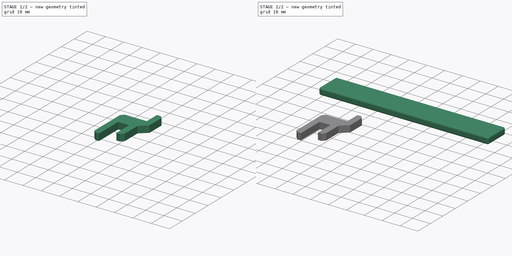
[diagram: build sequence overview — one tinted view per stage of 2, left to right]
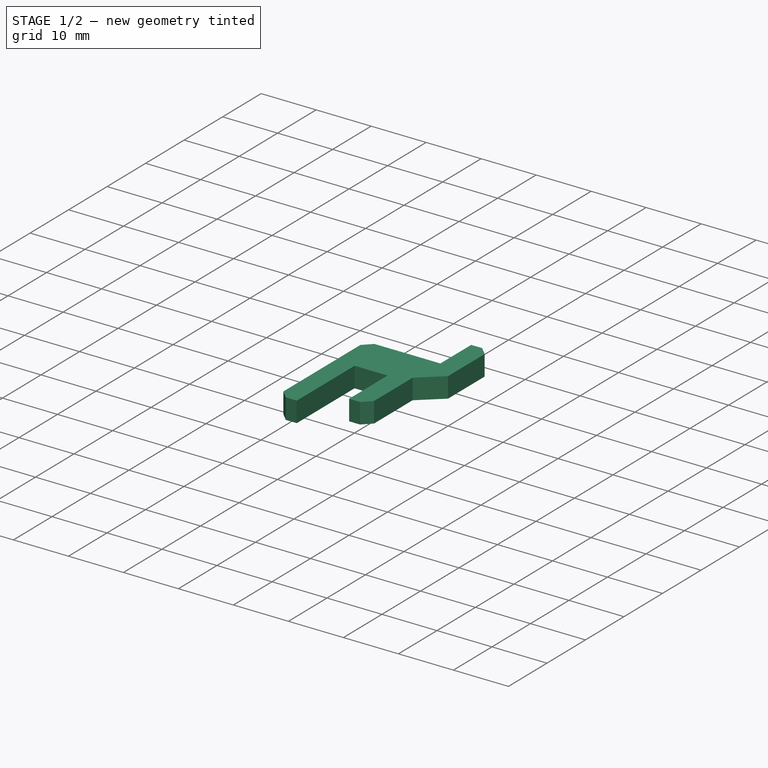
[diagram: stage 1 of 2 — iso view after this stage's code; geometry added in this stage tinted green]
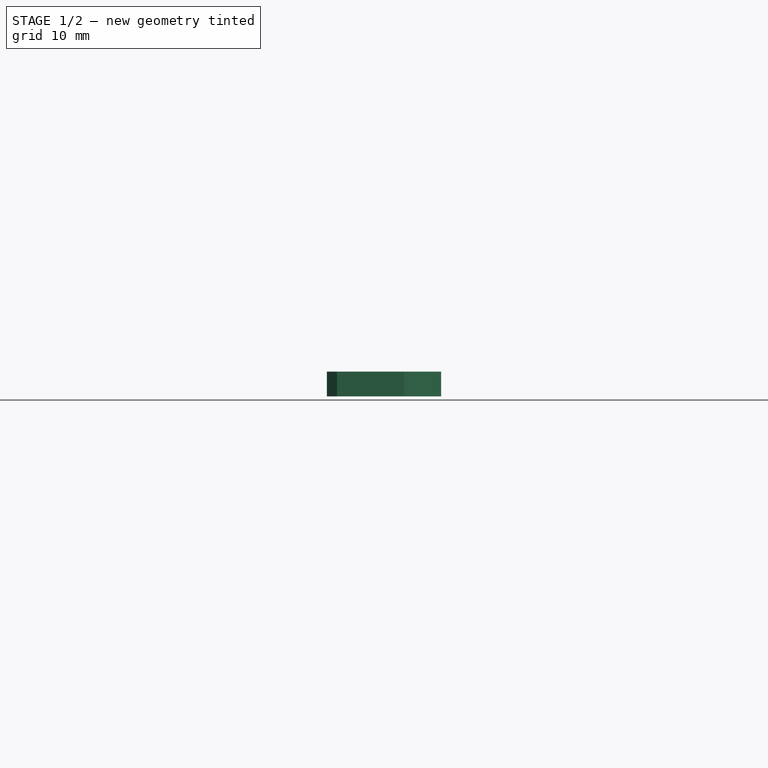
[diagram: stage 1 of 2 — front view after this stage's code; geometry added in this stage tinted green]
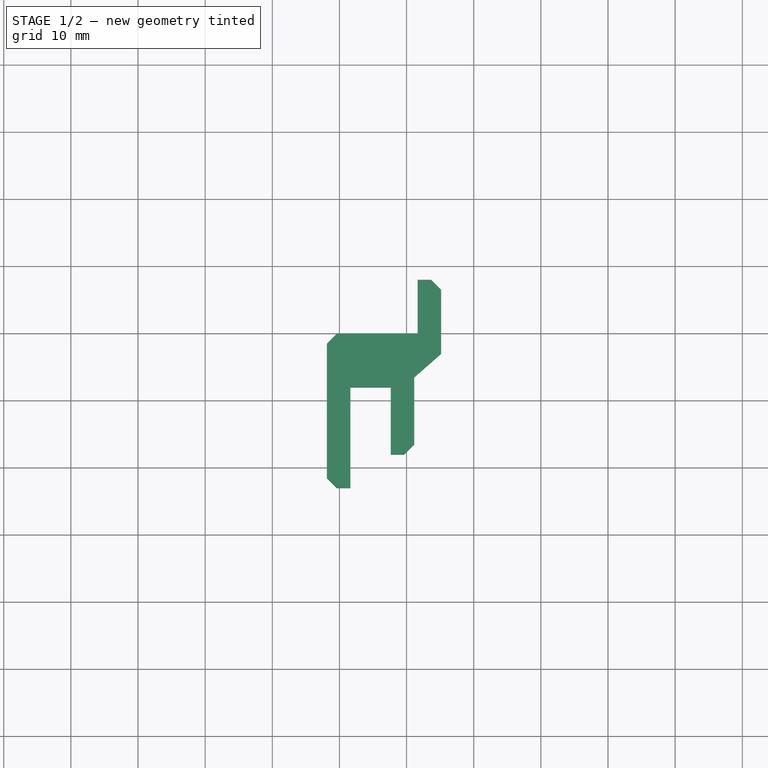
[diagram: stage 1 of 2 — top view after this stage's code; geometry added in this stage tinted green]
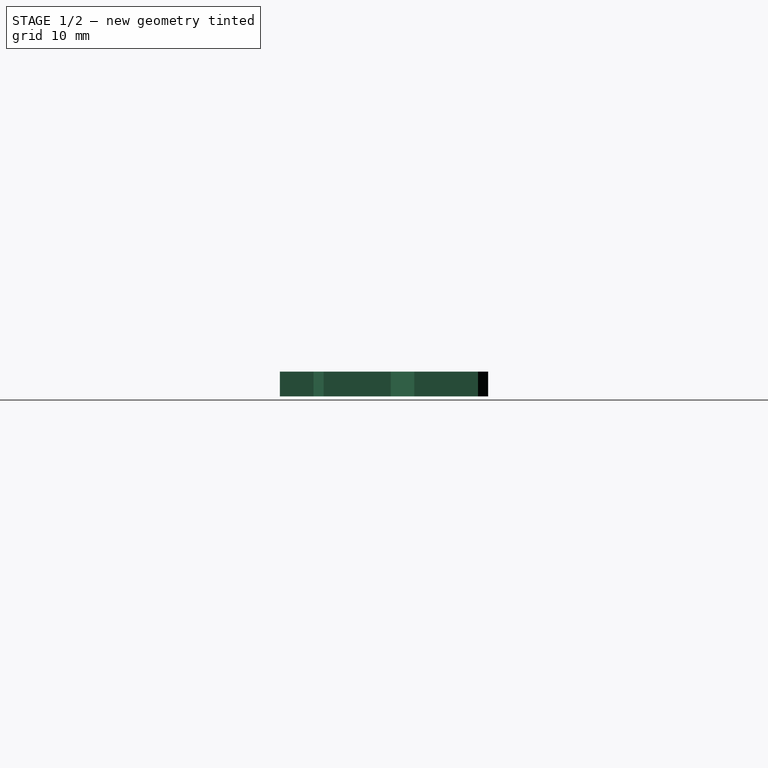
[diagram: stage 1 of 2 — right view after this stage's code; geometry added in this stage tinted green]
FCSTD DOCUMENT  (FreeCAD 0.16R6706 (Git))
Label: bloqueo_puerta
License: All rights reserved
LicenseURL: http://en.wikipedia.org/wiki/All_rights_reserved
objects: Part::Box×1, Part::Fillet×1, Sketcher::SketchObject×1, PartDesign::Pad×1, Part::FeaturePython×1
note: 6 computed .brp shape members not serialized (recipe doc carries the construction recipe); baked Part::Feature solids carry a one-line shape summary decoded from their .brp

FEATURE [Sketcher::SketchObject] Sketch
  Placement = pos=(26,0,4) rot=(0,0,1;0rad)
  sketch-geometry (16):
    g0: LineSegment StartX=23.6358 StartY=-0.032809 StartZ=0 EndX=35.6358 EndY=-0.032809 EndZ=0
    g1: LineSegment StartX=35.6358 StartY=-0.032809 StartZ=0 EndX=35.6358 EndY=7.96719 EndZ=0
    g2: LineSegment StartX=35.6358 StartY=7.96719 StartZ=0 EndX=37.6358 EndY=7.96719 EndZ=0
    g3: LineSegment StartX=39.1358 StartY=6.46719 StartZ=0 EndX=39.1358 EndY=-3.03281 EndZ=0
    g4: LineSegment StartX=39.1358 StartY=-3.03281 StartZ=0 EndX=35.1358 EndY=-6.53281 EndZ=0
    g5: LineSegment StartX=35.1358 StartY=-6.53281 StartZ=0 EndX=35.1358 EndY=-16.5328 EndZ=0
    g6: LineSegment StartX=33.6358 StartY=-18.0328 StartZ=0 EndX=31.6358 EndY=-18.0328 EndZ=0
    g7: LineSegment StartX=31.6358 StartY=-18.0328 StartZ=0 EndX=31.6358 EndY=-8.03281 EndZ=0
    g8: LineSegment StartX=31.6358 StartY=-8.03281 StartZ=0 EndX=25.6358 EndY=-8.03281 EndZ=0
    g9: LineSegment StartX=25.6358 StartY=-8.03281 StartZ=0 EndX=25.6358 EndY=-23.0328 EndZ=0
    g10: LineSegment StartX=25.6358 StartY=-23.0328 StartZ=0 EndX=23.6358 EndY=-23.0328 EndZ=0
    g11: LineSegment StartX=23.6358 StartY=-23.0328 StartZ=0 EndX=22.1358 EndY=-21.5328 EndZ=0
    g12: LineSegment StartX=22.1358 StartY=-21.5328 StartZ=0 EndX=22.1358 EndY=-1.53281 EndZ=0
    g13: LineSegment StartX=22.1358 StartY=-1.53281 StartZ=0 EndX=23.6358 EndY=-0.032809 EndZ=0
    g14: LineSegment StartX=37.6358 StartY=7.96719 StartZ=0 EndX=39.1358 EndY=6.46719 EndZ=0
    g15: LineSegment StartX=35.1358 StartY=-16.5328 StartZ=0 EndX=33.6358 EndY=-18.0328 EndZ=0
  constraints (47):
    c: Coincident(g1,g0)
    c: Coincident(g2,g1)
    c: Coincident(g4,g3)
    c: Coincident(g5,g4)
    c: Coincident(g7,g6)
    c: Coincident(g8,g7)
    c: Coincident(g9,g8)
    c: Coincident(g10,g9)
    c: Coincident(g11,g10)
    c: Coincident(g12,g11)
    c: Coincident(g13,g12)
    c: Coincident(g14,g2)
    c: Coincident(g14,g3)
    c: Coincident(g15,g5)
    c: Coincident(g15,g6)
    c: DistanceX(g0,g0) = 12
    c: DistanceY(g1,g1) = 8
    c: DistanceX(g2,g2) = 2
    c: DistanceY(g3,g3) = 9.5
    c: DistanceY(g5,g5) = 10
    c: DistanceX(g6,g6) = 2
    c: DistanceY(g7,g7) = 10
    c: DistanceX(g8,g8) = 6
    c: DistanceY(g9,g9) = 15
    c: DistanceX(g10,g10) = 2
    c: DistanceY(g12,g12) = 20
    c: DistanceX(g13,g13) = 1.5
    c: DistanceY(g13,g13) = 1.5
    c: DistanceY(g11,g11) = 1.5
    c: DistanceX(g11,g11) = 1.5
    c: DistanceX(g15,g15) = 1.5
    c: DistanceY(g15,g15) = 1.5
    c: DistanceX(g4,g4) = 4
    c: DistanceY(g4,g4) = 3.5
    c: DistanceX(g14,g14) = 1.5
    c: DistanceY(g14,g14) = 1.5
    c: Vertical(g12)
    c: Vertical(g9)
    c: Vertical(g7)
    c: Vertical(g5)
    c: Vertical(g3)
    c: Vertical(g1)
    c: Coincident(g0,g13)
    c: Horizontal(g0)
    c: Horizontal(g2)
    c: Horizontal(g6)
    c: Horizontal(g10)
FEATURE [PartDesign::Pad] Pad  label="soporte_1"
  Length = 3.7
  Length2 = 100
  Placement = pos=(26,0,4) rot=(0,0,1;0rad)
  Sketch = -> Sketch
  Type = 0
FEATURE [Part::FeaturePython] Clone001  label="soporte_2"  # Draft clone (typed FeaturePython)
  Objects = -> [Pad]
  Placement = pos=(-4,0,0) rot=(0,0,1;0rad)
  Scale = (1,1,1)
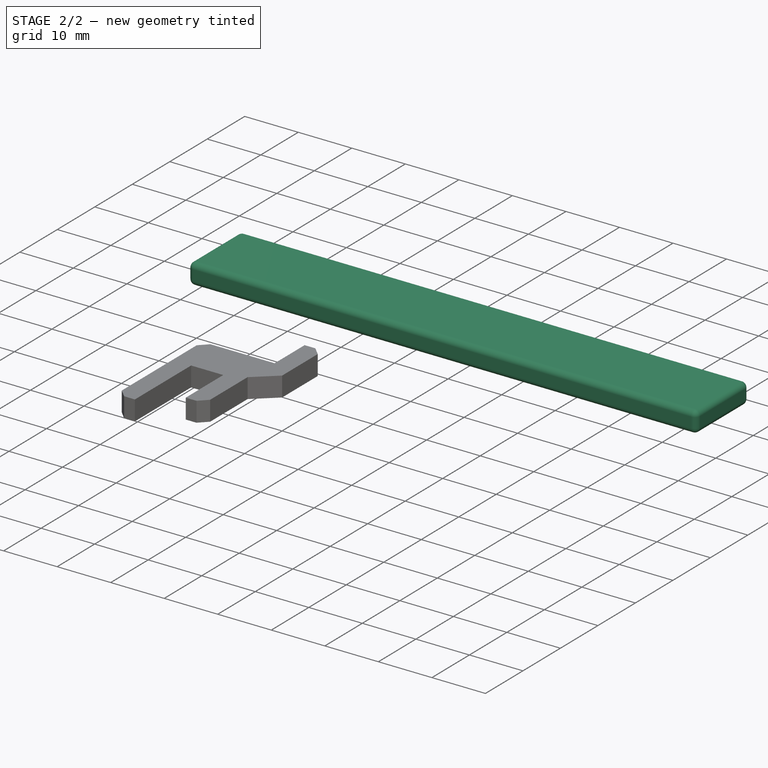
[diagram: stage 2 of 2 — iso view after this stage's code; geometry added in this stage tinted green]
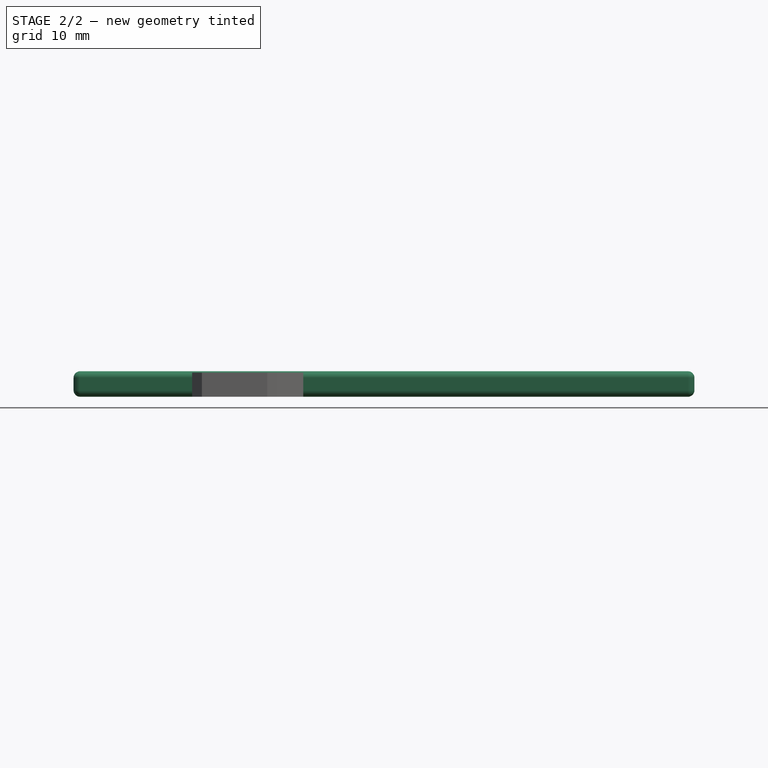
[diagram: stage 2 of 2 — front view after this stage's code; geometry added in this stage tinted green]
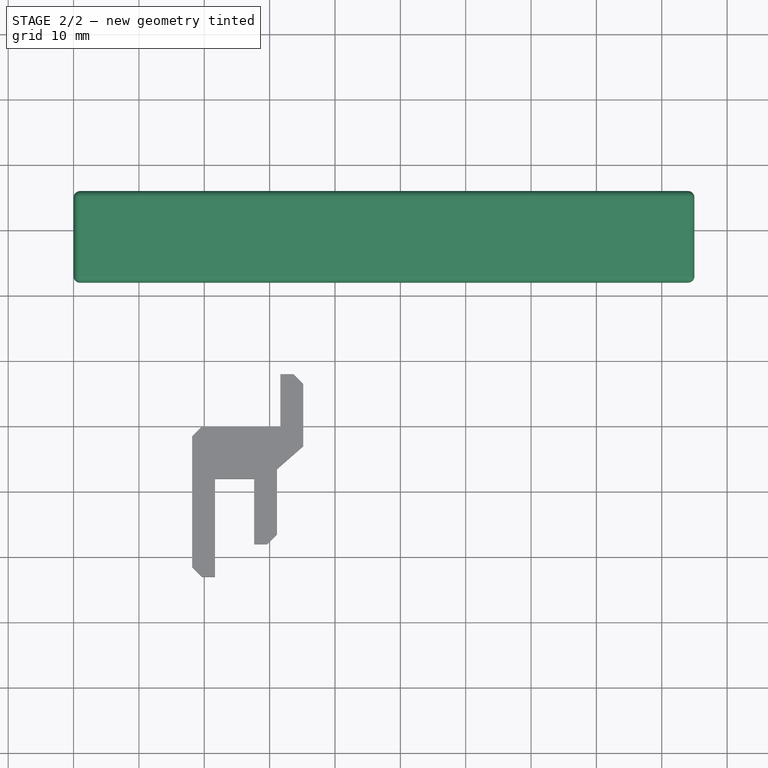
[diagram: stage 2 of 2 — top view after this stage's code; geometry added in this stage tinted green]
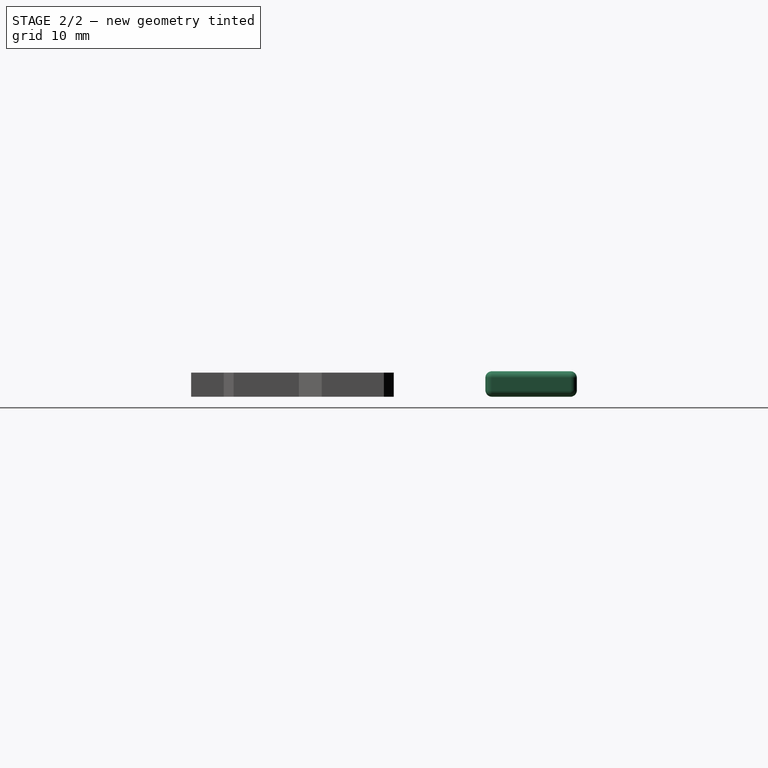
[diagram: stage 2 of 2 — right view after this stage's code; geometry added in this stage tinted green]
FEATURE [Part::Box] Box  label="Cube"
  Height = 3.9
  Length = 95
  Placement = pos=(0,22,0) rot=(0,0,1;0rad)
  Width = 14
FEATURE [Part::Fillet] Fillet  label="madero_bloqueo"
  Base = -> Box
  Edges = 12 edges r=1: [Edge1,Edge2,Edge3,Edge4,Edge5,Edge6,Edge7,Edge8,Edge9,Edge10,Edge11,Edge12]
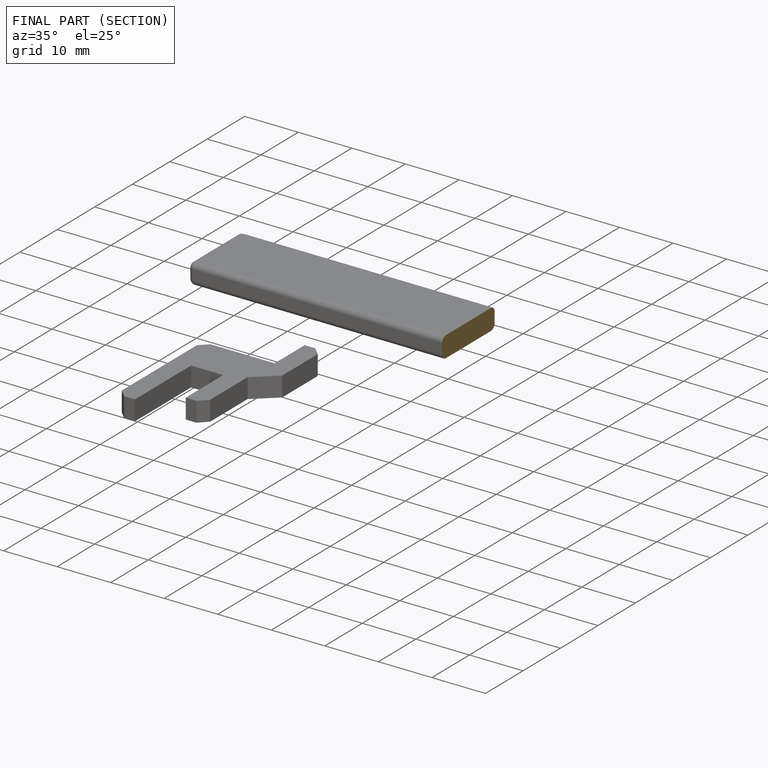
[diagram: finished part — half-section view (interior)]
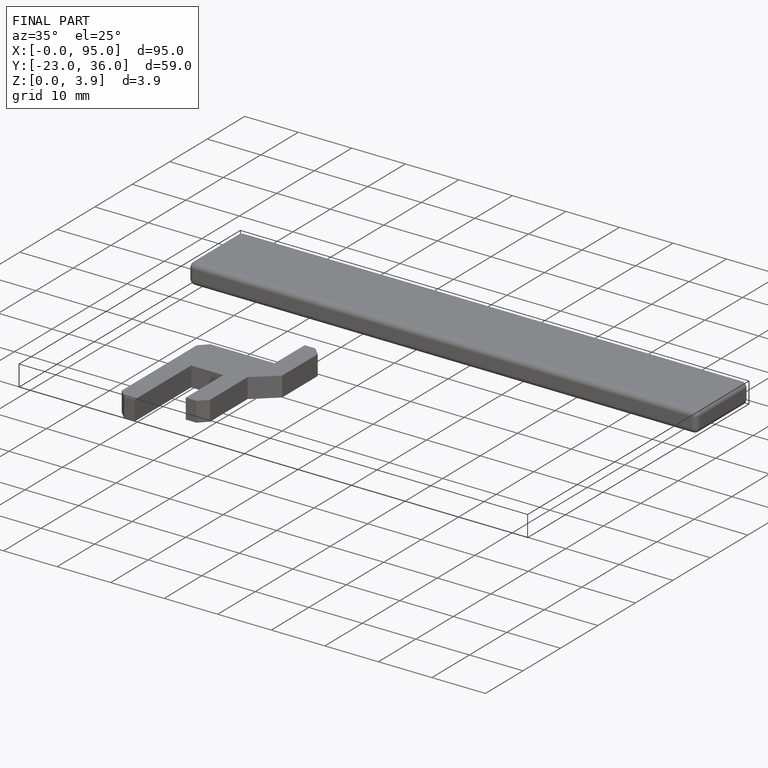
[diagram: finished part — iso view with bounding-box wireframe]
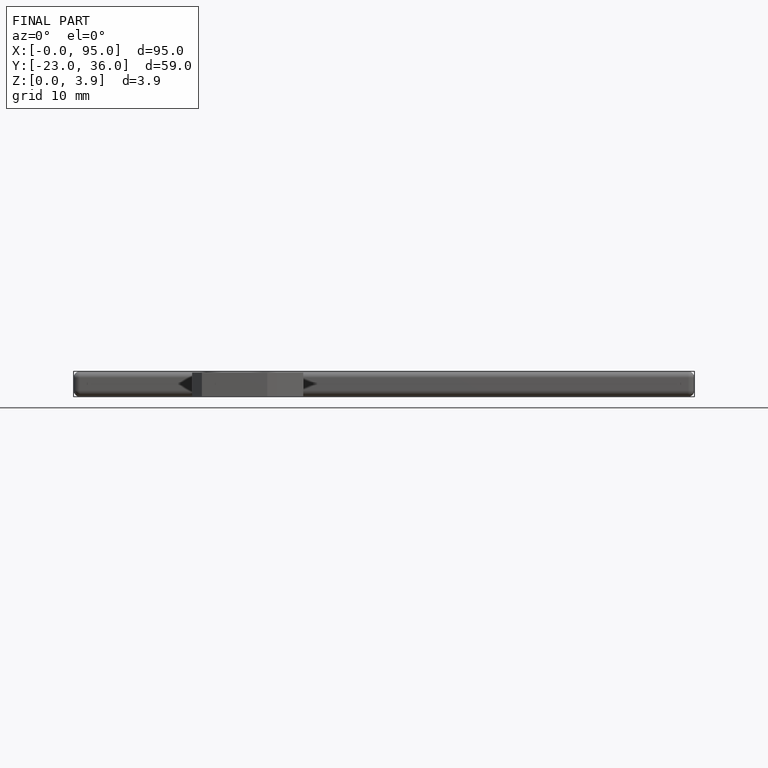
[diagram: finished part — front view with bounding-box wireframe]
